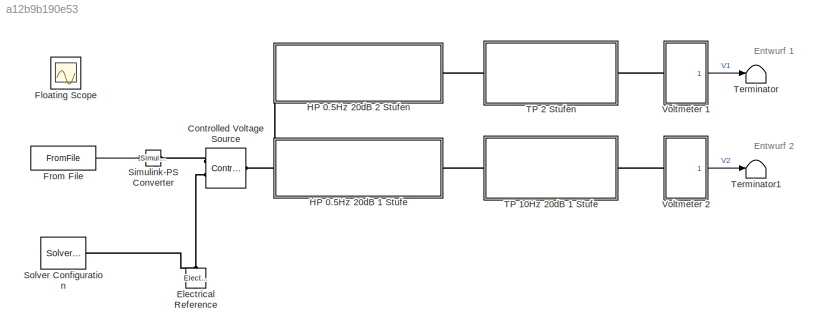
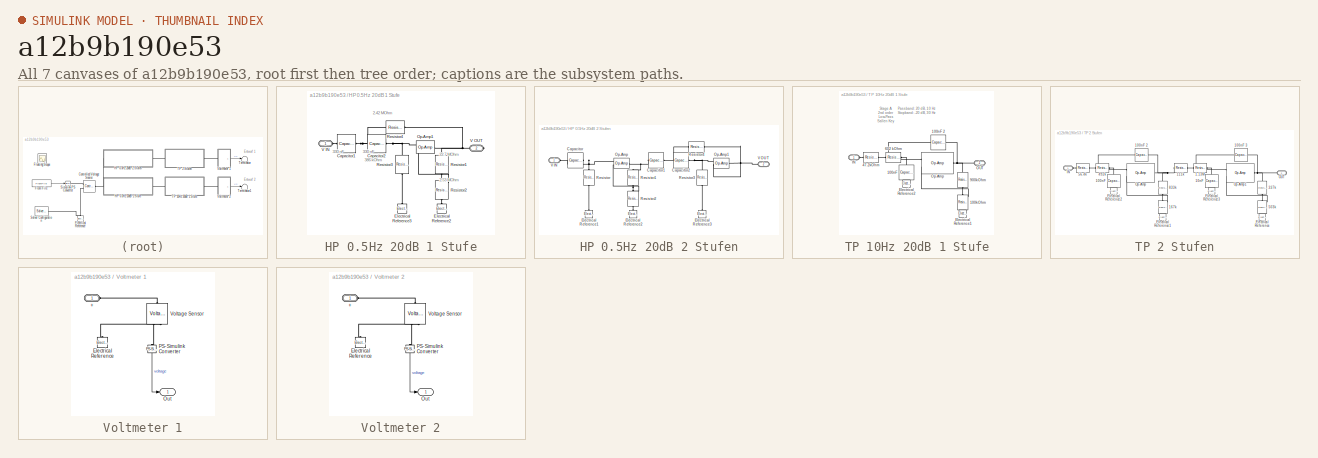
[diagram: thumbnail index - all 7 canvases of the model, root first then tree order]
MODEL slx_a12b9b190e53
KIND model
CONFIG AbsTol = auto
CONFIG EnableMultiTasking = off
CONFIG FixedStep = auto
CONFIG MaxStep = auto
CONFIG MinStep = auto
CONFIG RelTol = 1e-3
CONFIG SampleTimeConstraint = Unconstrained
CONFIG Solver = VariableStepAuto
CONFIG SolverName = VariableStepAuto
CONFIG StartTime = 0.0
CONFIG StopTime = 76.5
BLOCK [Reference] Controlled Voltage Source  REF=fl_lib/Electrical/Electrical Sources/Controlled Voltage
Source
  Ports = [0, 0, 0, 0, 0, 1, 2]
  SourceBlock = fl_lib/Electrical/Electrical Sources/Controlled Voltage\nSource
  SourceProductBaseCode = SS
  SourceProductName = Simscape
  SourceType = Controlled Voltage\nSource
BLOCK [Reference] Electrical Reference  REF=fl_lib/Electrical/Electrical Elements/Electrical Reference
  Ports = [0, 0, 0, 0, 0, 1]
  SourceBlock = fl_lib/Electrical/Electrical Elements/Electrical Reference
  SourceProductBaseCode = SS
  SourceProductName = Simscape
  SourceType = Electrical Reference
BLOCK [Scope] Floating Scope
  Floating = on
  NumInputPorts = 1
  Ports = []
  ScopeSpecificationString = Simulink.scopes.TimeScopeBlockCfg('CurrentConfiguration', extmgr.ConfigurationSet(extmgr.Configuration('Core','General UI',true),extmgr.Configuration('Core','Source UI',true),extmgr.Configuration('Sources','WiredSimulink',true),extmgr.Configuration('Visuals','Time Domain',true,'SerializedDisplays',{struct('MinYLimReal','-0.36745','MaxYLimReal','-0.03109','YLabelReal','','MinYLimMag','0.00000','Max...<+2776ch>
BLOCK [FromFile] From File
  FileName = ppg_roh.mat
  OutDataTypeStr = double
  SampleTime = 0.001
BLOCK [SubSystem] HP 0.5Hz 20dB 1 Stufe
  Ports = [0, 0, 0, 0, 0, 1, 1]
  RequestExecContextInheritance = off
BLOCK [Reference] HP 0.5Hz 20dB 1 Stufe/Capacitor1  REF=elec_lib/Passive Devices/Capacitor
  Ports = [0, 0, 0, 0, 0, 1, 1]
  SourceBlock = elec_lib/Passive Devices/Capacitor
  SourceProductBaseCode = SN
  SourceProductName = Simscape Electronics
  SourceType = Capacitor
BLOCK [Reference] HP 0.5Hz 20dB 1 Stufe/Capacitor2  REF=elec_lib/Passive Devices/Capacitor
  Ports = [0, 0, 0, 0, 0, 1, 1]
  SourceBlock = elec_lib/Passive Devices/Capacitor
  SourceProductBaseCode = SN
  SourceProductName = Simscape Electronics
  SourceType = Capacitor
BLOCK [Reference] HP 0.5Hz 20dB 1 Stufe/Electrical Reference2  REF=fl_lib/Electrical/Electrical Elements/Electrical Reference
  Ports = [0, 0, 0, 0, 0, 1]
  SourceBlock = fl_lib/Electrical/Electrical Elements/Electrical Reference
  SourceProductBaseCode = SS
  SourceProductName = Simscape
  SourceType = Electrical Reference
BLOCK [Reference] HP 0.5Hz 20dB 1 Stufe/Electrical Reference3  REF=fl_lib/Electrical/Electrical Elements/Electrical Reference
  Ports = [0, 0, 0, 0, 0, 1]
  SourceBlock = fl_lib/Electrical/Electrical Elements/Electrical Reference
  SourceProductBaseCode = SS
  SourceProductName = Simscape
  SourceType = Electrical Reference
BLOCK [Reference] HP 0.5Hz 20dB 1 Stufe/Op-Amp1  REF=fl_lib/Electrical/Electrical Elements/Op-Amp
  Ports = [0, 0, 0, 0, 0, 2, 1]
  SourceBlock = fl_lib/Electrical/Electrical Elements/Op-Amp
  SourceProductBaseCode = SS
  SourceProductName = Simscape
  SourceType = Op-Amp
BLOCK [Reference] HP 0.5Hz 20dB 1 Stufe/Resistor1  REF=elec_lib/Passive Devices/Resistor
  Ports = [0, 0, 0, 0, 0, 1, 1]
  SourceBlock = elec_lib/Passive Devices/Resistor
  SourceProductBaseCode = SN
  SourceProductName = Simscape Electronics
  SourceType = Resistor
BLOCK [Reference] HP 0.5Hz 20dB 1 Stufe/Resistor2  REF=elec_lib/Passive Devices/Resistor
  Ports = [0, 0, 0, 0, 0, 1, 1]
  SourceBlock = elec_lib/Passive Devices/Resistor
  SourceProductBaseCode = SN
  SourceProductName = Simscape Electronics
  SourceType = Resistor
BLOCK [Reference] HP 0.5Hz 20dB 1 Stufe/Resistor3  REF=elec_lib/Passive Devices/Resistor
  Ports = [0, 0, 0, 0, 0, 1, 1]
  SourceBlock = elec_lib/Passive Devices/Resistor
  SourceProductBaseCode = SN
  SourceProductName = Simscape Electronics
  SourceType = Resistor
BLOCK [Reference] HP 0.5Hz 20dB 1 Stufe/Resistor4  REF=elec_lib/Passive Devices/Resistor
  Ports = [0, 0, 0, 0, 0, 1, 1]
  SourceBlock = elec_lib/Passive Devices/Resistor
  SourceProductBaseCode = SN
  SourceProductName = Simscape Electronics
  SourceType = Resistor
BLOCK [PMIOPort] HP 0.5Hz 20dB 1 Stufe/V IN
  Side = Left
BLOCK [PMIOPort] HP 0.5Hz 20dB 1 Stufe/V OUT
  Port = 2
  Side = Right
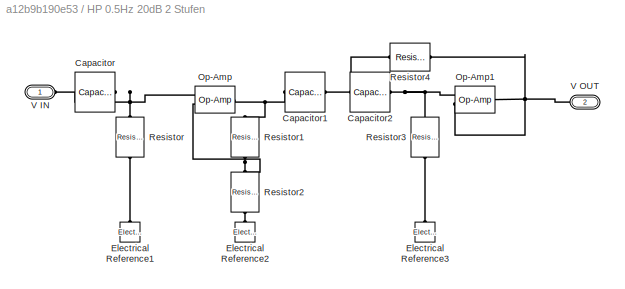
BLOCK [SubSystem] HP 0.5Hz 20dB 2 Stufen
  Ports = [0, 0, 0, 0, 0, 1, 1]
  RequestExecContextInheritance = off
BLOCK [Reference] HP 0.5Hz 20dB 2 Stufen/Capacitor  REF=elec_lib/Passive Devices/Capacitor
  Ports = [0, 0, 0, 0, 0, 1, 1]
  SourceBlock = elec_lib/Passive Devices/Capacitor
  SourceProductBaseCode = SN
  SourceProductName = Simscape Electronics
  SourceType = Capacitor
BLOCK [Reference] HP 0.5Hz 20dB 2 Stufen/Capacitor1  REF=elec_lib/Passive Devices/Capacitor
  Ports = [0, 0, 0, 0, 0, 1, 1]
  SourceBlock = elec_lib/Passive Devices/Capacitor
  SourceProductBaseCode = SN
  SourceProductName = Simscape Electronics
  SourceType = Capacitor
BLOCK [Reference] HP 0.5Hz 20dB 2 Stufen/Capacitor2  REF=elec_lib/Passive Devices/Capacitor
  Ports = [0, 0, 0, 0, 0, 1, 1]
  SourceBlock = elec_lib/Passive Devices/Capacitor
  SourceProductBaseCode = SN
  SourceProductName = Simscape Electronics
  SourceType = Capacitor
BLOCK [Reference] HP 0.5Hz 20dB 2 Stufen/Electrical Reference1  REF=fl_lib/Electrical/Electrical Elements/Electrical Reference
  Ports = [0, 0, 0, 0, 0, 1]
  SourceBlock = fl_lib/Electrical/Electrical Elements/Electrical Reference
  SourceProductBaseCode = SS
  SourceProductName = Simscape
  SourceType = Electrical Reference
BLOCK [Reference] HP 0.5Hz 20dB 2 Stufen/Electrical Reference2  REF=fl_lib/Electrical/Electrical Elements/Electrical Reference
  Ports = [0, 0, 0, 0, 0, 1]
  SourceBlock = fl_lib/Electrical/Electrical Elements/Electrical Reference
  SourceProductBaseCode = SS
  SourceProductName = Simscape
  SourceType = Electrical Reference
BLOCK [Reference] HP 0.5Hz 20dB 2 Stufen/Electrical Reference3  REF=fl_lib/Electrical/Electrical Elements/Electrical Reference
  Ports = [0, 0, 0, 0, 0, 1]
  SourceBlock = fl_lib/Electrical/Electrical Elements/Electrical Reference
  SourceProductBaseCode = SS
  SourceProductName = Simscape
  SourceType = Electrical Reference
BLOCK [Reference] HP 0.5Hz 20dB 2 Stufen/Op-Amp  REF=fl_lib/Electrical/Electrical Elements/Op-Amp
  Ports = [0, 0, 0, 0, 0, 2, 1]
  SourceBlock = fl_lib/Electrical/Electrical Elements/Op-Amp
  SourceProductBaseCode = SS
  SourceProductName = Simscape
  SourceType = Op-Amp
BLOCK [Reference] HP 0.5Hz 20dB 2 Stufen/Op-Amp1  REF=fl_lib/Electrical/Electrical Elements/Op-Amp
  Ports = [0, 0, 0, 0, 0, 2, 1]
  SourceBlock = fl_lib/Electrical/Electrical Elements/Op-Amp
  SourceProductBaseCode = SS
  SourceProductName = Simscape
  SourceType = Op-Amp
BLOCK [Reference] HP 0.5Hz 20dB 2 Stufen/Resistor  REF=elec_lib/Passive Devices/Resistor
  Ports = [0, 0, 0, 0, 0, 1, 1]
  SourceBlock = elec_lib/Passive Devices/Resistor
  SourceProductBaseCode = SN
  SourceProductName = Simscape Electronics
  SourceType = Resistor
BLOCK [Reference] HP 0.5Hz 20dB 2 Stufen/Resistor1  REF=elec_lib/Passive Devices/Resistor
  Ports = [0, 0, 0, 0, 0, 1, 1]
  SourceBlock = elec_lib/Passive Devices/Resistor
  SourceProductBaseCode = SN
  SourceProductName = Simscape Electronics
  SourceType = Resistor
BLOCK [Reference] HP 0.5Hz 20dB 2 Stufen/Resistor2  REF=elec_lib/Passive Devices/Resistor
  Ports = [0, 0, 0, 0, 0, 1, 1]
  SourceBlock = elec_lib/Passive Devices/Resistor
  SourceProductBaseCode = SN
  SourceProductName = Simscape Electronics
  SourceType = Resistor
BLOCK [Reference] HP 0.5Hz 20dB 2 Stufen/Resistor3  REF=elec_lib/Passive Devices/Resistor
  Ports = [0, 0, 0, 0, 0, 1, 1]
  SourceBlock = elec_lib/Passive Devices/Resistor
  SourceProductBaseCode = SN
  SourceProductName = Simscape Electronics
  SourceType = Resistor
BLOCK [Reference] HP 0.5Hz 20dB 2 Stufen/Resistor4  REF=elec_lib/Passive Devices/Resistor
  Ports = [0, 0, 0, 0, 0, 1, 1]
  SourceBlock = elec_lib/Passive Devices/Resistor
  SourceProductBaseCode = SN
  SourceProductName = Simscape Electronics
  SourceType = Resistor
BLOCK [PMIOPort] HP 0.5Hz 20dB 2 Stufen/V IN
  Side = Left
BLOCK [PMIOPort] HP 0.5Hz 20dB 2 Stufen/V OUT
  Port = 2
  Side = Right
BLOCK [Reference] Simulink-PS Converter  REF=nesl_utility/Simulink-PS
Converter
  Ports = [1, 0, 0, 0, 0, 0, 1]
  SourceBlock = nesl_utility/Simulink-PS\nConverter
  SourceProductBaseCode = SS
  SourceProductName = Simscape
  SourceType = Simulink-PS\nConverter
BLOCK [Reference] Solver Configuration  REF=nesl_utility/Solver
Configuration
  Ports = [0, 0, 0, 0, 0, 0, 1]
  SourceBlock = nesl_utility/Solver\nConfiguration
  SourceProductBaseCode = SS
  SourceProductName = Simscape
  SourceType = Solver\nConfiguration
BLOCK [SubSystem] TP 10Hz 20dB 1 Stufe
  Ports = [0, 0, 0, 0, 0, 1, 1]
  RequestExecContextInheritance = off
BLOCK [Reference] TP 10Hz 20dB 1 Stufe/100kOhm  REF=elec_lib/Passive Devices/Resistor
  Ports = [0, 0, 0, 0, 0, 1, 1]
  SourceBlock = elec_lib/Passive Devices/Resistor
  SourceProductBaseCode = SN
  SourceProductName = Simscape Electronics
  SourceType = Resistor
BLOCK [Reference] TP 10Hz 20dB 1 Stufe/100nF  REF=elec_lib/Passive Devices/Capacitor
  Ports = [0, 0, 0, 0, 0, 1, 1]
  SourceBlock = elec_lib/Passive Devices/Capacitor
  SourceProductBaseCode = SN
  SourceProductName = Simscape Electronics
  SourceType = Capacitor
BLOCK [Reference] TP 10Hz 20dB 1 Stufe/100nF 2   REF=elec_lib/Passive Devices/Capacitor
  Ports = [0, 0, 0, 0, 0, 1, 1]
  SourceBlock = elec_lib/Passive Devices/Capacitor
  SourceProductBaseCode = SN
  SourceProductName = Simscape Electronics
  SourceType = Capacitor
BLOCK [Reference] TP 10Hz 20dB 1 Stufe/47.2kOhm  REF=elec_lib/Passive Devices/Resistor
  Ports = [0, 0, 0, 0, 0, 1, 1]
  SourceBlock = elec_lib/Passive Devices/Resistor
  SourceProductBaseCode = SN
  SourceProductName = Simscape Electronics
  SourceType = Resistor
BLOCK [Reference] TP 10Hz 20dB 1 Stufe/602 kOhm  REF=elec_lib/Passive Devices/Resistor
  Ports = [0, 0, 0, 0, 0, 1, 1]
  SourceBlock = elec_lib/Passive Devices/Resistor
  SourceProductBaseCode = SN
  SourceProductName = Simscape Electronics
  SourceType = Resistor
BLOCK [Reference] TP 10Hz 20dB 1 Stufe/900kOhm  REF=elec_lib/Passive Devices/Resistor
  Ports = [0, 0, 0, 0, 0, 1, 1]
  SourceBlock = elec_lib/Passive Devices/Resistor
  SourceProductBaseCode = SN
  SourceProductName = Simscape Electronics
  SourceType = Resistor
BLOCK [Reference] TP 10Hz 20dB 1 Stufe/Electrical Reference1  REF=fl_lib/Electrical/Electrical Elements/Electrical Reference
  Ports = [0, 0, 0, 0, 0, 1]
  SourceBlock = fl_lib/Electrical/Electrical Elements/Electrical Reference
  SourceProductBaseCode = SS
  SourceProductName = Simscape
  SourceType = Electrical Reference
BLOCK [Reference] TP 10Hz 20dB 1 Stufe/Electrical Reference2  REF=fl_lib/Electrical/Electrical Elements/Electrical Reference
  Ports = [0, 0, 0, 0, 0, 1]
  SourceBlock = fl_lib/Electrical/Electrical Elements/Electrical Reference
  SourceProductBaseCode = SS
  SourceProductName = Simscape
  SourceType = Electrical Reference
BLOCK [PMIOPort] TP 10Hz 20dB 1 Stufe/IN
  Side = Left
BLOCK [PMIOPort] TP 10Hz 20dB 1 Stufe/OUT
  Port = 2
  Side = Right
BLOCK [Reference] TP 10Hz 20dB 1 Stufe/Op-Amp  REF=fl_lib/Electrical/Electrical Elements/Op-Amp
  Ports = [0, 0, 0, 0, 0, 2, 1]
  SourceBlock = fl_lib/Electrical/Electrical Elements/Op-Amp
  SourceProductBaseCode = SS
  SourceProductName = Simscape
  SourceType = Op-Amp
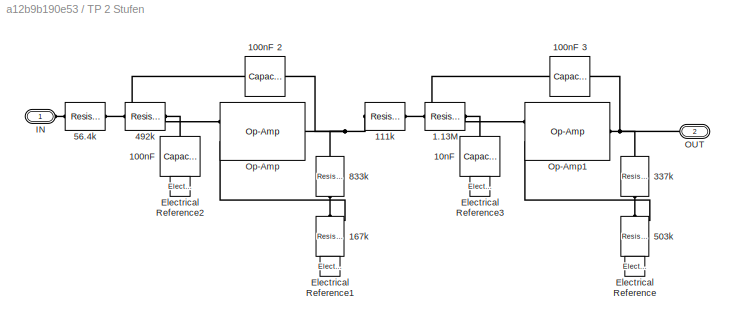
BLOCK [SubSystem] TP 2 Stufen
  Ports = [0, 0, 0, 0, 0, 1, 1]
  RequestExecContextInheritance = off
BLOCK [Reference] TP 2 Stufen/1.13M  REF=elec_lib/Passive Devices/Resistor
  Ports = [0, 0, 0, 0, 0, 1, 1]
  SourceBlock = elec_lib/Passive Devices/Resistor
  SourceProductBaseCode = SN
  SourceProductName = Simscape Electronics
  SourceType = Resistor
BLOCK [Reference] TP 2 Stufen/100nF  REF=elec_lib/Passive Devices/Capacitor
  Ports = [0, 0, 0, 0, 0, 1, 1]
  SourceBlock = elec_lib/Passive Devices/Capacitor
  SourceProductBaseCode = SN
  SourceProductName = Simscape Electronics
  SourceType = Capacitor
BLOCK [Reference] TP 2 Stufen/100nF 2   REF=elec_lib/Passive Devices/Capacitor
  Ports = [0, 0, 0, 0, 0, 1, 1]
  SourceBlock = elec_lib/Passive Devices/Capacitor
  SourceProductBaseCode = SN
  SourceProductName = Simscape Electronics
  SourceType = Capacitor
BLOCK [Reference] TP 2 Stufen/100nF 3  REF=elec_lib/Passive Devices/Capacitor
  Ports = [0, 0, 0, 0, 0, 1, 1]
  SourceBlock = elec_lib/Passive Devices/Capacitor
  SourceProductBaseCode = SN
  SourceProductName = Simscape Electronics
  SourceType = Capacitor
BLOCK [Reference] TP 2 Stufen/10nF  REF=elec_lib/Passive Devices/Capacitor
  Ports = [0, 0, 0, 0, 0, 1, 1]
  SourceBlock = elec_lib/Passive Devices/Capacitor
  SourceProductBaseCode = SN
  SourceProductName = Simscape Electronics
  SourceType = Capacitor
BLOCK [Reference] TP 2 Stufen/111k  REF=elec_lib/Passive Devices/Resistor
  Ports = [0, 0, 0, 0, 0, 1, 1]
  SourceBlock = elec_lib/Passive Devices/Resistor
  SourceProductBaseCode = SN
  SourceProductName = Simscape Electronics
  SourceType = Resistor
BLOCK [Reference] TP 2 Stufen/167k  REF=elec_lib/Passive Devices/Resistor
  Ports = [0, 0, 0, 0, 0, 1, 1]
  SourceBlock = elec_lib/Passive Devices/Resistor
  SourceProductBaseCode = SN
  SourceProductName = Simscape Electronics
  SourceType = Resistor
BLOCK [Reference] TP 2 Stufen/337k  REF=elec_lib/Passive Devices/Resistor
  Ports = [0, 0, 0, 0, 0, 1, 1]
  SourceBlock = elec_lib/Passive Devices/Resistor
  SourceProductBaseCode = SN
  SourceProductName = Simscape Electronics
  SourceType = Resistor
BLOCK [Reference] TP 2 Stufen/492k  REF=elec_lib/Passive Devices/Resistor
  Ports = [0, 0, 0, 0, 0, 1, 1]
  SourceBlock = elec_lib/Passive Devices/Resistor
  SourceProductBaseCode = SN
  SourceProductName = Simscape Electronics
  SourceType = Resistor
BLOCK [Reference] TP 2 Stufen/503k  REF=elec_lib/Passive Devices/Resistor
  Ports = [0, 0, 0, 0, 0, 1, 1]
  SourceBlock = elec_lib/Passive Devices/Resistor
  SourceProductBaseCode = SN
  SourceProductName = Simscape Electronics
  SourceType = Resistor
BLOCK [Reference] TP 2 Stufen/56.4k  REF=elec_lib/Passive Devices/Resistor
  Ports = [0, 0, 0, 0, 0, 1, 1]
  SourceBlock = elec_lib/Passive Devices/Resistor
  SourceProductBaseCode = SN
  SourceProductName = Simscape Electronics
  SourceType = Resistor
BLOCK [Reference] TP 2 Stufen/833k  REF=elec_lib/Passive Devices/Resistor
  Ports = [0, 0, 0, 0, 0, 1, 1]
  SourceBlock = elec_lib/Passive Devices/Resistor
  SourceProductBaseCode = SN
  SourceProductName = Simscape Electronics
  SourceType = Resistor
BLOCK [Reference] TP 2 Stufen/Electrical Reference  REF=fl_lib/Electrical/Electrical Elements/Electrical Reference
  Ports = [0, 0, 0, 0, 0, 1]
  SourceBlock = fl_lib/Electrical/Electrical Elements/Electrical Reference
  SourceProductBaseCode = SS
  SourceProductName = Simscape
  SourceType = Electrical Reference
BLOCK [Reference] TP 2 Stufen/Electrical Reference1  REF=fl_lib/Electrical/Electrical Elements/Electrical Reference
  Ports = [0, 0, 0, 0, 0, 1]
  SourceBlock = fl_lib/Electrical/Electrical Elements/Electrical Reference
  SourceProductBaseCode = SS
  SourceProductName = Simscape
  SourceType = Electrical Reference
BLOCK [Reference] TP 2 Stufen/Electrical Reference2  REF=fl_lib/Electrical/Electrical Elements/Electrical Reference
  Ports = [0, 0, 0, 0, 0, 1]
  SourceBlock = fl_lib/Electrical/Electrical Elements/Electrical Reference
  SourceProductBaseCode = SS
  SourceProductName = Simscape
  SourceType = Electrical Reference
BLOCK [Reference] TP 2 Stufen/Electrical Reference3  REF=fl_lib/Electrical/Electrical Elements/Electrical Reference
  Ports = [0, 0, 0, 0, 0, 1]
  SourceBlock = fl_lib/Electrical/Electrical Elements/Electrical Reference
  SourceProductBaseCode = SS
  SourceProductName = Simscape
  SourceType = Electrical Reference
BLOCK [PMIOPort] TP 2 Stufen/IN
  Side = Left
BLOCK [PMIOPort] TP 2 Stufen/OUT
  Port = 2
  Side = Right
BLOCK [Reference] TP 2 Stufen/Op-Amp  REF=fl_lib/Electrical/Electrical Elements/Op-Amp
  Ports = [0, 0, 0, 0, 0, 2, 1]
  SourceBlock = fl_lib/Electrical/Electrical Elements/Op-Amp
  SourceProductBaseCode = SS
  SourceProductName = Simscape
  SourceType = Op-Amp
BLOCK [Reference] TP 2 Stufen/Op-Amp1  REF=fl_lib/Electrical/Electrical Elements/Op-Amp
  Ports = [0, 0, 0, 0, 0, 2, 1]
  SourceBlock = fl_lib/Electrical/Electrical Elements/Op-Amp
  SourceProductBaseCode = SS
  SourceProductName = Simscape
  SourceType = Op-Amp
BLOCK [Terminator] Terminator
BLOCK [Terminator] Terminator1
BLOCK [SubSystem] Voltmeter 1
  Ports = [0, 1, 0, 0, 0, 1]
  RequestExecContextInheritance = off
BLOCK [PMIOPort] Voltmeter 1/+
  Side = Left
BLOCK [Reference] Voltmeter 1/Electrical Reference  REF=fl_lib/Electrical/Electrical Elements/Electrical Reference
  Ports = [0, 0, 0, 0, 0, 1]
  SourceBlock = fl_lib/Electrical/Electrical Elements/Electrical Reference
  SourceProductBaseCode = SS
  SourceProductName = Simscape
  SourceType = Electrical Reference
BLOCK [Outport] Voltmeter 1/Out
  IconDisplay = Port number
BLOCK [Reference] Voltmeter 1/PS-Simulink Converter  REF=nesl_utility/PS-Simulink
Converter
  Ports = [0, 1, 0, 0, 0, 1]
  SourceBlock = nesl_utility/PS-Simulink\nConverter
  SourceProductBaseCode = SS
  SourceProductName = Simscape
  SourceType = PS-Simulink\nConverter
BLOCK [Reference] Voltmeter 1/Voltage Sensor  REF=fl_lib/Electrical/Electrical Sensors/Voltage Sensor
  Ports = [0, 0, 0, 0, 0, 1, 2]
  SourceBlock = fl_lib/Electrical/Electrical Sensors/Voltage Sensor
  SourceProductBaseCode = SS
  SourceProductName = Simscape
  SourceType = Voltage Sensor
BLOCK [SubSystem] Voltmeter 2
  Ports = [0, 1, 0, 0, 0, 1]
  RequestExecContextInheritance = off
BLOCK [PMIOPort] Voltmeter 2/+
  Side = Left
BLOCK [Reference] Voltmeter 2/Electrical Reference  REF=fl_lib/Electrical/Electrical Elements/Electrical Reference
  Ports = [0, 0, 0, 0, 0, 1]
  SourceBlock = fl_lib/Electrical/Electrical Elements/Electrical Reference
  SourceProductBaseCode = SS
  SourceProductName = Simscape
  SourceType = Electrical Reference
BLOCK [Outport] Voltmeter 2/Out
  IconDisplay = Port number
BLOCK [Reference] Voltmeter 2/PS-Simulink Converter  REF=nesl_utility/PS-Simulink
Converter
  Ports = [0, 1, 0, 0, 0, 1]
  SourceBlock = nesl_utility/PS-Simulink\nConverter
  SourceProductBaseCode = SS
  SourceProductName = Simscape
  SourceType = PS-Simulink\nConverter
BLOCK [Reference] Voltmeter 2/Voltage Sensor  REF=fl_lib/Electrical/Electrical Sensors/Voltage Sensor
  Ports = [0, 0, 0, 0, 0, 1, 2]
  SourceBlock = fl_lib/Electrical/Electrical Sensors/Voltage Sensor
  SourceProductBaseCode = SS
  SourceProductName = Simscape
  SourceType = Voltage Sensor
ANNOTATION (root): Entwurf 1
ANNOTATION (root): Entwurf 2
ANNOTATION HP 0.5Hz 20dB 1 Stufe: 2.42 MOhm
ANNOTATION HP 0.5Hz 20dB 1 Stufe: 2.53 MOhm
ANNOTATION HP 0.5Hz 20dB 1 Stufe: 22.7 MOhm
ANNOTATION HP 0.5Hz 20dB 1 Stufe: 330 nF
ANNOTATION HP 0.5Hz 20dB 1 Stufe: 386 kOhm
ANNOTATION TP 10Hz 20dB 1 Stufe: Passband: 20 dB, 10 Hz Stopband: -20 dB, 30 Hz
ANNOTATION TP 10Hz 20dB 1 Stufe: Stage A 2nd order Low-Pass Sallen Key
LINE From File:1 -> Simulink-PS Converter:1
LINE Voltmeter 1/PS-Simulink Converter:1 -> Voltmeter 1/Out:1
LINE Voltmeter 1:1 -> Terminator:1
LINE Voltmeter 2/PS-Simulink Converter:1 -> Voltmeter 2/Out:1
LINE Voltmeter 2:1 -> Terminator1:1
PNET net1: Controlled Voltage Source:LConn1 -- HP 0.5Hz 20dB 1 Stufe:LConn1 -- HP 0.5Hz 20dB 2 Stufen:LConn1
PLINE Controlled Voltage Source:RConn1 -- Simulink-PS Converter:RConn1
PNET net2: Controlled Voltage Source:RConn2 -- Electrical Reference:LConn1 -- Solver Configuration:RConn1
PLINE HP 0.5Hz 20dB 1 Stufe/Capacitor1:LConn1 -- HP 0.5Hz 20dB 1 Stufe/V IN:RConn1
PNET net3: HP 0.5Hz 20dB 1 Stufe/Capacitor1:RConn1 -- HP 0.5Hz 20dB 1 Stufe/Capacitor2:LConn1 -- HP 0.5Hz 20dB 1 Stufe/Resistor4:LConn1
PNET net4: HP 0.5Hz 20dB 1 Stufe/Capacitor2:RConn1 -- HP 0.5Hz 20dB 1 Stufe/Op-Amp1:LConn1 -- HP 0.5Hz 20dB 1 Stufe/Resistor3:LConn1
PLINE HP 0.5Hz 20dB 1 Stufe/Electrical Reference2:LConn1 -- HP 0.5Hz 20dB 1 Stufe/Resistor2:RConn1
PLINE HP 0.5Hz 20dB 1 Stufe/Electrical Reference3:LConn1 -- HP 0.5Hz 20dB 1 Stufe/Resistor3:RConn1
PNET net5: HP 0.5Hz 20dB 1 Stufe/Op-Amp1:LConn2 -- HP 0.5Hz 20dB 1 Stufe/Resistor1:RConn1 -- HP 0.5Hz 20dB 1 Stufe/Resistor2:LConn1
PNET net6: HP 0.5Hz 20dB 1 Stufe/Op-Amp1:RConn1 -- HP 0.5Hz 20dB 1 Stufe/Resistor1:LConn1 -- HP 0.5Hz 20dB 1 Stufe/Resistor4:RConn1 -- HP 0.5Hz 20dB 1 Stufe/V OUT:RConn1
PLINE HP 0.5Hz 20dB 1 Stufe:RConn1 -- TP 10Hz 20dB 1 Stufe:LConn1
PNET net7: HP 0.5Hz 20dB 2 Stufen/Capacitor1:LConn1 -- HP 0.5Hz 20dB 2 Stufen/Op-Amp:RConn1 -- HP 0.5Hz 20dB 2 Stufen/Resistor1:LConn1
PNET net8: HP 0.5Hz 20dB 2 Stufen/Capacitor1:RConn1 -- HP 0.5Hz 20dB 2 Stufen/Capacitor2:LConn1 -- HP 0.5Hz 20dB 2 Stufen/Resistor4:LConn1
PNET net9: HP 0.5Hz 20dB 2 Stufen/Capacitor2:RConn1 -- HP 0.5Hz 20dB 2 Stufen/Op-Amp1:LConn1 -- HP 0.5Hz 20dB 2 Stufen/Resistor3:LConn1
PNET net10: HP 0.5Hz 20dB 2 Stufen/Capacitor:LConn1 -- HP 0.5Hz 20dB 2 Stufen/Op-Amp:LConn1 -- HP 0.5Hz 20dB 2 Stufen/Resistor:LConn1
PLINE HP 0.5Hz 20dB 2 Stufen/Capacitor:RConn1 -- HP 0.5Hz 20dB 2 Stufen/V IN:RConn1
PLINE HP 0.5Hz 20dB 2 Stufen/Electrical Reference1:LConn1 -- HP 0.5Hz 20dB 2 Stufen/Resistor:RConn1
PLINE HP 0.5Hz 20dB 2 Stufen/Electrical Reference2:LConn1 -- HP 0.5Hz 20dB 2 Stufen/Resistor2:RConn1
PLINE HP 0.5Hz 20dB 2 Stufen/Electrical Reference3:LConn1 -- HP 0.5Hz 20dB 2 Stufen/Resistor3:RConn1
PNET net11: HP 0.5Hz 20dB 2 Stufen/Op-Amp1:LConn2 -- HP 0.5Hz 20dB 2 Stufen/Op-Amp1:RConn1 -- HP 0.5Hz 20dB 2 Stufen/Resistor4:RConn1 -- HP 0.5Hz 20dB 2 Stufen/V OUT:RConn1
PNET net12: HP 0.5Hz 20dB 2 Stufen/Op-Amp:LConn2 -- HP 0.5Hz 20dB 2 Stufen/Resistor1:RConn1 -- HP 0.5Hz 20dB 2 Stufen/Resistor2:LConn1
PLINE HP 0.5Hz 20dB 2 Stufen:RConn1 -- TP 2 Stufen:LConn1
PNET net13: TP 10Hz 20dB 1 Stufe/100kOhm:LConn1 -- TP 10Hz 20dB 1 Stufe/900kOhm:RConn1 -- TP 10Hz 20dB 1 Stufe/Op-Amp:LConn2
PLINE TP 10Hz 20dB 1 Stufe/100kOhm:RConn1 -- TP 10Hz 20dB 1 Stufe/Electrical Reference1:LConn1
PNET net14: TP 10Hz 20dB 1 Stufe/100nF 2 :LConn1 -- TP 10Hz 20dB 1 Stufe/47.2kOhm:RConn1 -- TP 10Hz 20dB 1 Stufe/602 kOhm:LConn1
PNET net15: TP 10Hz 20dB 1 Stufe/100nF 2 :RConn1 -- TP 10Hz 20dB 1 Stufe/900kOhm:LConn1 -- TP 10Hz 20dB 1 Stufe/OUT:RConn1 -- TP 10Hz 20dB 1 Stufe/Op-Amp:RConn1
PNET net16: TP 10Hz 20dB 1 Stufe/100nF:LConn1 -- TP 10Hz 20dB 1 Stufe/602 kOhm:RConn1 -- TP 10Hz 20dB 1 Stufe/Op-Amp:LConn1
PLINE TP 10Hz 20dB 1 Stufe/100nF:RConn1 -- TP 10Hz 20dB 1 Stufe/Electrical Reference2:LConn1
PLINE TP 10Hz 20dB 1 Stufe/47.2kOhm:LConn1 -- TP 10Hz 20dB 1 Stufe/IN:RConn1
PLINE TP 10Hz 20dB 1 Stufe:RConn1 -- Voltmeter 2:LConn1
PNET net17: TP 2 Stufen/1.13M:LConn1 -- TP 2 Stufen/100nF 3:LConn1 -- TP 2 Stufen/111k:RConn1
PNET net18: TP 2 Stufen/1.13M:RConn1 -- TP 2 Stufen/10nF:LConn1 -- TP 2 Stufen/Op-Amp1:LConn1
PNET net19: TP 2 Stufen/100nF 2 :LConn1 -- TP 2 Stufen/492k:LConn1 -- TP 2 Stufen/56.4k:RConn1
PNET net20: TP 2 Stufen/100nF 2 :RConn1 -- TP 2 Stufen/111k:LConn1 -- TP 2 Stufen/833k:LConn1 -- TP 2 Stufen/Op-Amp:RConn1
PNET net21: TP 2 Stufen/100nF 3:RConn1 -- TP 2 Stufen/337k:LConn1 -- TP 2 Stufen/OUT:RConn1 -- TP 2 Stufen/Op-Amp1:RConn1
PNET net22: TP 2 Stufen/100nF:LConn1 -- TP 2 Stufen/492k:RConn1 -- TP 2 Stufen/Op-Amp:LConn1
PLINE TP 2 Stufen/100nF:RConn1 -- TP 2 Stufen/Electrical Reference2:LConn1
PLINE TP 2 Stufen/10nF:RConn1 -- TP 2 Stufen/Electrical Reference3:LConn1
PNET net23: TP 2 Stufen/167k:LConn1 -- TP 2 Stufen/833k:RConn1 -- TP 2 Stufen/Op-Amp:LConn2
PLINE TP 2 Stufen/167k:RConn1 -- TP 2 Stufen/Electrical Reference1:LConn1
PNET net24: TP 2 Stufen/337k:RConn1 -- TP 2 Stufen/503k:LConn1 -- TP 2 Stufen/Op-Amp1:LConn2
PLINE TP 2 Stufen/503k:RConn1 -- TP 2 Stufen/Electrical Reference:LConn1
PLINE TP 2 Stufen/56.4k:LConn1 -- TP 2 Stufen/IN:RConn1
PLINE TP 2 Stufen:RConn1 -- Voltmeter 1:LConn1
PLINE Voltmeter 1/+:RConn1 -- Voltmeter 1/Voltage Sensor:LConn1
PLINE Voltmeter 1/Electrical Reference:LConn1 -- Voltmeter 1/Voltage Sensor:RConn2
PLINE Voltmeter 1/PS-Simulink Converter:LConn1 -- Voltmeter 1/Voltage Sensor:RConn1
PLINE Voltmeter 2/+:RConn1 -- Voltmeter 2/Voltage Sensor:LConn1
PLINE Voltmeter 2/Electrical Reference:LConn1 -- Voltmeter 2/Voltage Sensor:RConn2
PLINE Voltmeter 2/PS-Simulink Converter:LConn1 -- Voltmeter 2/Voltage Sensor:RConn1
note: PNET lines group multi-terminal physical nets as a canonical sorted terminal list (undirected conserving connections); 2-terminal nets keep the pairwise PLINE form
